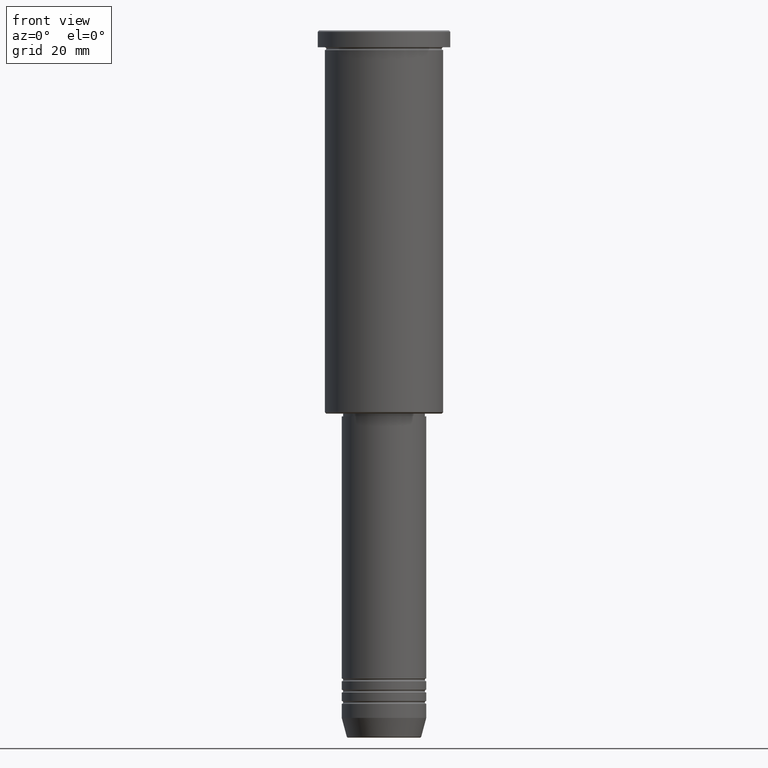
[diagram: clean part render]
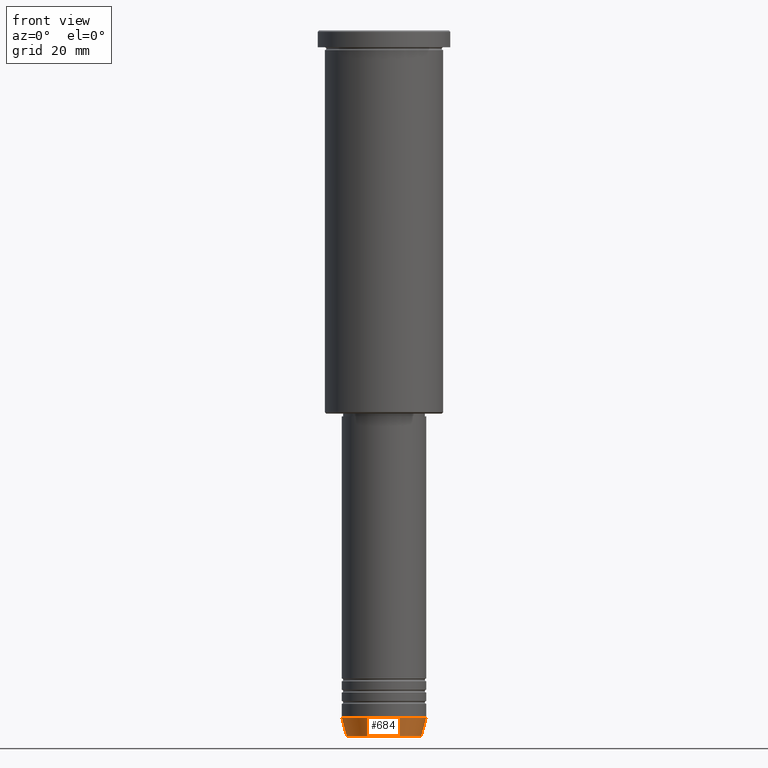
[diagram: same view with one face highlighted and labeled with its STEP entity id]
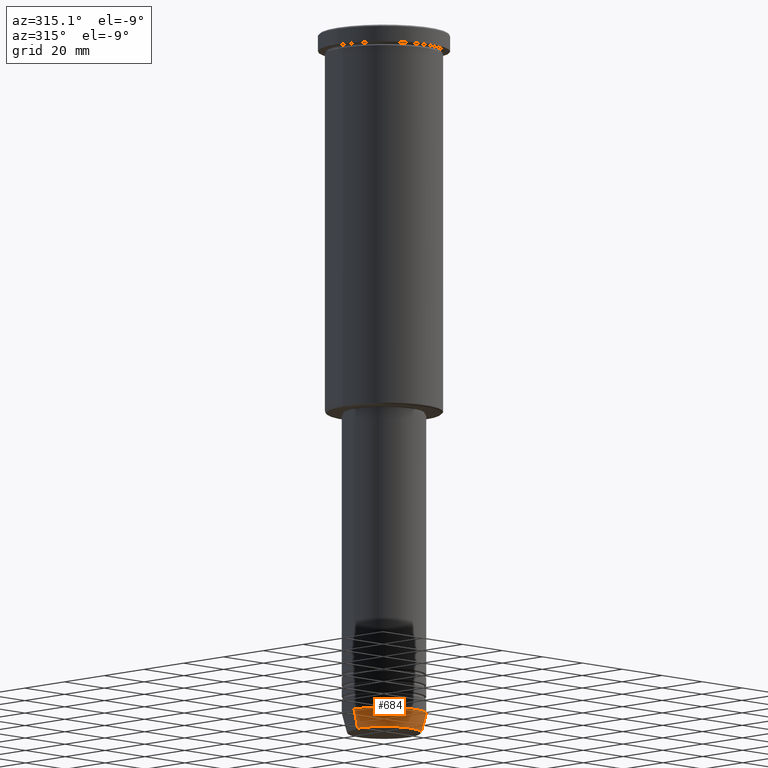
[diagram: same view with one face highlighted and labeled with its STEP entity id]
A machine part, front view. The second image highlights one B-rep face of the part: STEP entity #684.
A second angle (auxiliary view) of the same face is appended — the face is thin or edge-on in the first view.
In plain terms, the highlighted conical surface has half-angle 15 deg.
Its self-contained STEP definition (entity closure, byte-faithful):
#11 = CARTESIAN_POINT ( 'NONE',  ( 0.000000000000000000, 0.000000000000000000, -244.0000000000000000 ) ) ;
#62 = VERTEX_POINT ( 'NONE', #613 ) ;
#76 = ORIENTED_EDGE ( 'NONE', *, *, #779, .T. ) ;
#122 = VERTEX_POINT ( 'NONE', #712 ) ;
#145 = ORIENTED_EDGE ( 'NONE', *, *, #1143, .F. ) ;
#153 = AXIS2_PLACEMENT_3D ( 'NONE', #1117, #296, #877 ) ;
#158 = ORIENTED_EDGE ( 'NONE', *, *, #765, .T. ) ;
#184 = LINE ( 'NONE', #738, #262 ) ;
#197 = VERTEX_POINT ( 'NONE', #736 ) ;
#198 = DIRECTION ( 'NONE',  ( 1.000000000000000000, 0.000000000000000000, 0.000000000000000000 ) ) ;
#262 = VECTOR ( 'NONE', #380, 1000.000000000000000 ) ;
#279 = CONICAL_SURFACE ( 'NONE', #574, 15.00000000000000000, 0.2617993877991500740 ) ;
#296 = DIRECTION ( 'NONE',  ( -0.000000000000000000, -0.000000000000000000, 1.000000000000000000 ) ) ;
#366 = EDGE_LOOP ( 'NONE', ( #145, #76, #158, #948 ) ) ;
#380 = DIRECTION ( 'NONE',  ( -0.2588190451025213501, 3.169619151431772337E-17, 0.9659258262890680902 ) ) ;
#556 = AXIS2_PLACEMENT_3D ( 'NONE', #11, #1096, #743 ) ;
#561 = CARTESIAN_POINT ( 'NONE',  ( 0.000000000000000000, 0.000000000000000000, -244.0000000000000000 ) ) ;
#574 = AXIS2_PLACEMENT_3D ( 'NONE', #561, #1091, #198 ) ;
#608 = CIRCLE ( 'NONE', #556, 15.00000000000000000 ) ;
#613 = CARTESIAN_POINT ( 'NONE',  ( -15.00000000000000000, 1.836970198721029589E-15, -244.0000000000000000 ) ) ;
#627 = VECTOR ( 'NONE', #778, 1000.000000000000000 ) ;
#674 = CARTESIAN_POINT ( 'NONE',  ( 15.00000000000000000, 0.000000000000000000, -244.0000000000000000 ) ) ;
#684 = ADVANCED_FACE ( 'NONE', ( #1183 ), #279, .T. ) ;
#706 = CIRCLE ( 'NONE', #153, 13.22365507213719482 ) ;
#712 = CARTESIAN_POINT ( 'NONE',  ( -13.22365507213719660, 1.728200442216588780E-15, -250.6294095225512422 ) ) ;
#728 = EDGE_CURVE ( 'NONE', #62, #197, #608, .T. ) ;
#736 = CARTESIAN_POINT ( 'NONE',  ( 15.00000000000000000, 0.000000000000000000, -244.0000000000000000 ) ) ;
#738 = CARTESIAN_POINT ( 'NONE',  ( -15.00000000000000000, 1.836970198721029589E-15, -244.0000000000000000 ) ) ;
#743 = DIRECTION ( 'NONE',  ( 1.000000000000000000, 0.000000000000000000, 0.000000000000000000 ) ) ;
#765 = EDGE_CURVE ( 'NONE', #849, #197, #1110, .T. ) ;
#778 = DIRECTION ( 'NONE',  ( 0.2588190451025213501, 0.000000000000000000, 0.9659258262890680902 ) ) ;
#779 = EDGE_CURVE ( 'NONE', #122, #849, #706, .T. ) ;
#849 = VERTEX_POINT ( 'NONE', #873 ) ;
#873 = CARTESIAN_POINT ( 'NONE',  ( 13.22365507213719482, 0.000000000000000000, -250.6294095225512422 ) ) ;
#877 = DIRECTION ( 'NONE',  ( 1.000000000000000000, 0.000000000000000000, 0.000000000000000000 ) ) ;
#948 = ORIENTED_EDGE ( 'NONE', *, *, #728, .F. ) ;
#1091 = DIRECTION ( 'NONE',  ( -0.000000000000000000, -0.000000000000000000, 1.000000000000000000 ) ) ;
#1096 = DIRECTION ( 'NONE',  ( -0.000000000000000000, -0.000000000000000000, 1.000000000000000000 ) ) ;
#1110 = LINE ( 'NONE', #674, #627 ) ;
#1117 = CARTESIAN_POINT ( 'NONE',  ( 0.000000000000000000, 0.000000000000000000, -250.6294095225512422 ) ) ;
#1143 = EDGE_CURVE ( 'NONE', #122, #62, #184, .T. ) ;
#1183 = FACE_OUTER_BOUND ( 'NONE', #366, .T. ) ;